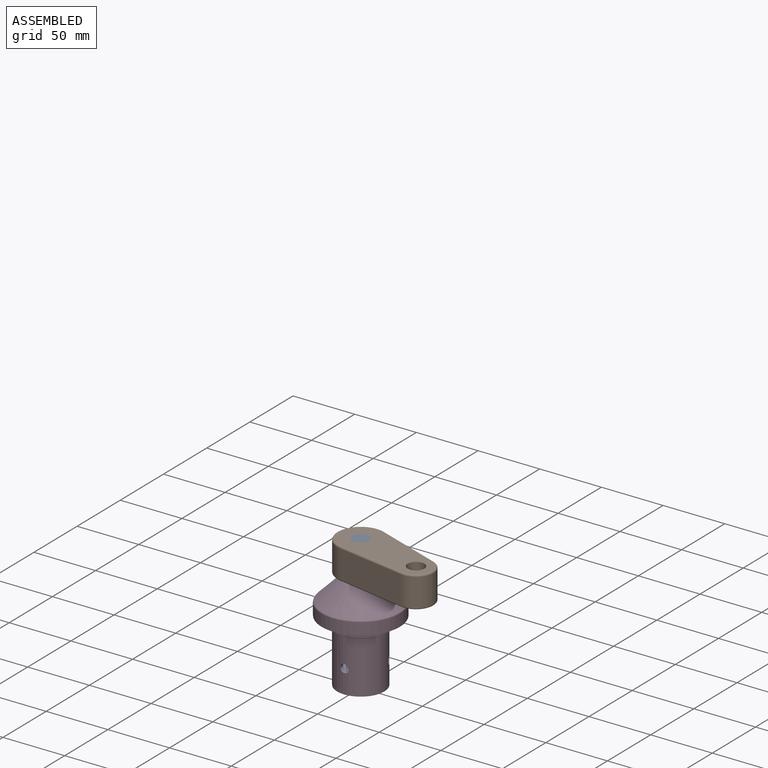
[diagram: assembled view]
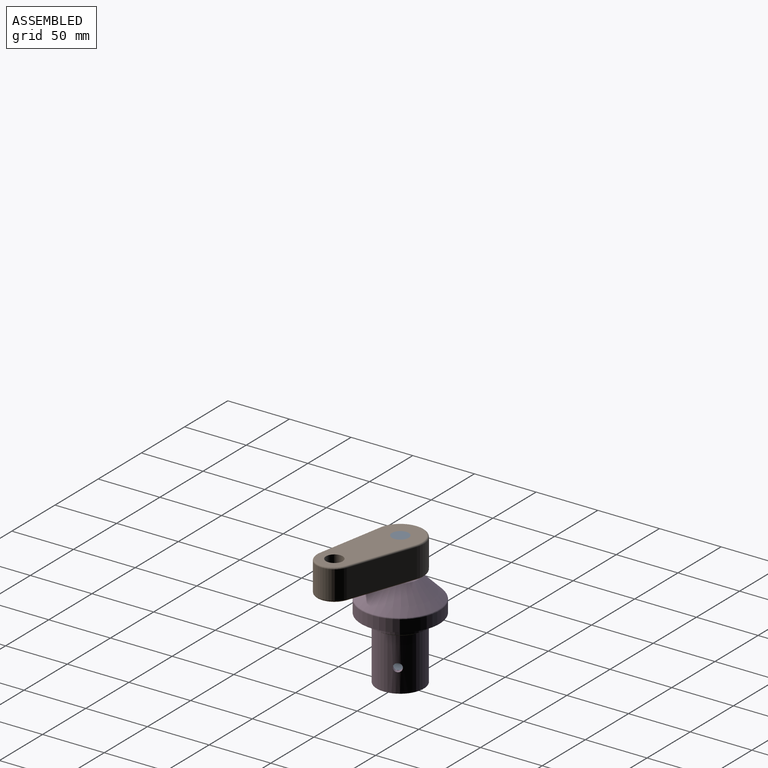
[diagram: assembled view, second angle]
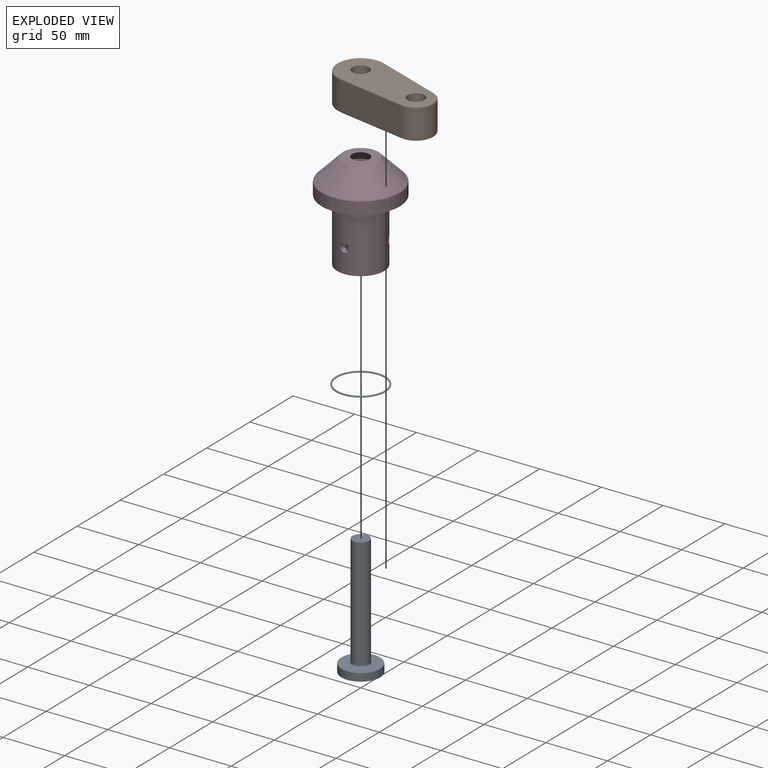
[diagram: exploded view]
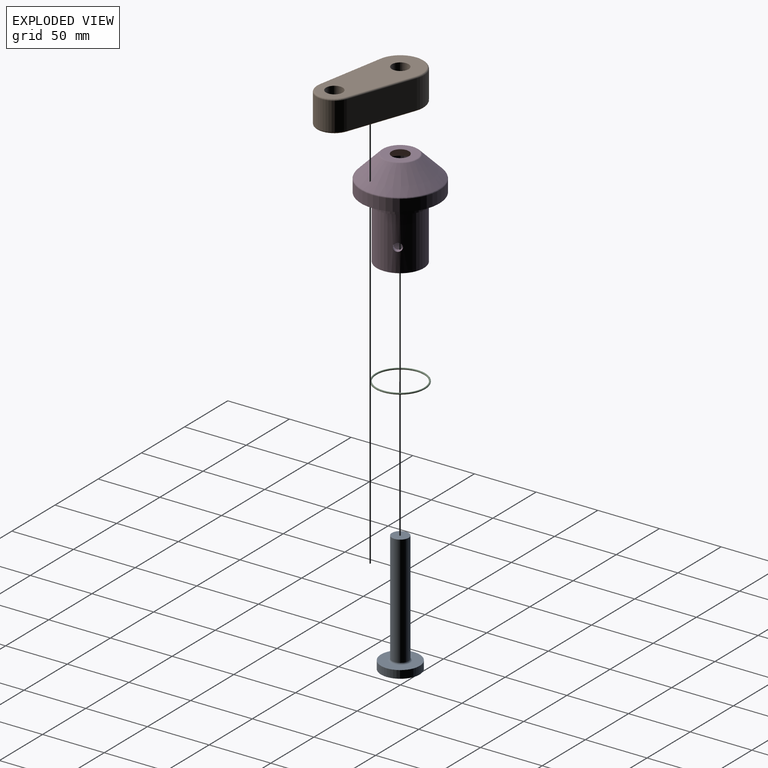
[diagram: exploded view, second angle]
ASSEMBLY  parts=4 mates=3
PART A: 6 faces, bbox 31.4x31.4x97.8 mm
  f0: plane 31.35x31.35mm, normal (0,0,-1), area 772.1mm2, adj f1
  f1: cylinder r=15.68mm len=31.35mm, axis (0,0,1), area 625.5mm2, adj f0,f2
  f2: plane 31.35x31.35mm, normal (0,0,1), area 568.1mm2, adj f1,f5
  f3: cylinder r=6.79mm len=90.17mm, axis (0,0,1), area 3845mm2, adj f4,f5
  f4: plane 13.57x13.57mm, normal (0,0,1), area 144.7mm2, adj f3
  f5: torus R=8.06mm, axis (0,0,1), area 90.9mm2, adj f2,f3
PART B: 16 faces, bbox 93.2x41.2x25.4 mm
  f0: plane 87.95x35.56mm, normal (0,0,-1), area 2239.6mm2, adj f5,f6,f8,f9,f10,f11
  f1: cylinder r=19.05mm len=38.1mm, axis (0,0,1), area 1440.8mm2, adj f2,f4,f11,f14
  f2: plane 56.75x22.86mm, normal (0.08,-1,0), area 1301.9mm2, adj f1,f3,f10,f12
  f3: cylinder r=14.29mm len=28.48mm, axis (0,0,1), area 971.6mm2, adj f2,f4,f8,f13
  f4: plane 56.75x22.86mm, normal (0.08,1,0), area 1301.9mm2, adj f1,f3,f9,f15
  f5: cylinder r=6.79mm len=25.4mm, axis (0,0,1), area 1083.1mm2, adj f0,f7
  f6: cylinder r=6.79mm len=25.4mm, axis (0,0,1), area 1083.1mm2, adj f0,f7
  f7: plane 87.95x35.56mm, normal (0,0,1), area 2239.6mm2, adj f5,f6,f12,f13,f14,f15
  f8: torus R=13.02mm, axis (0,0,-1), area 82mm2, adj f0,f3,f9,f10
  f9: cylinder r=1.27mm len=56.86mm, axis (-1,0.08,0), area 113.6mm2, adj f0,f4,f8,f11
  f10: cylinder r=1.27mm len=56.86mm, axis (1,0.08,0), area 113.6mm2, adj f0,f2,f8,f11
  f11: torus R=17.78mm, axis (0,0,-1), area 122.7mm2, adj f0,f1,f9,f10
  f12: cylinder r=1.27mm len=56.86mm, axis (1,0.08,0), area 113.6mm2, adj f2,f7,f13,f14
  f13: torus R=13.02mm, axis (0,0,1), area 82mm2, adj f3,f7,f12,f15
  f14: torus R=17.78mm, axis (0,0,1), area 122.7mm2, adj f1,f7,f12,f15
  f15: cylinder r=1.27mm len=56.86mm, axis (-1,0.08,0), area 113.6mm2, adj f4,f7,f13,f14
PART C: 1 faces, bbox 44x44x1.3 mm
  f0: torus R=19.69mm, axis (0,0,1), area 493.5mm2
PART D: 16 faces, bbox 68.7x68.7x78.7 mm
  f0: cylinder r=19.05mm len=44.45mm, axis (0,0,1), area 5212.7mm2, adj f3,f4,f11,f12,f13
  f1: cylinder r=15.88mm len=63.5mm, axis (0,0,1), area 6225.3mm2, adj f2,f10,f11,f12,f13
  f2: plane 31.75x31.75mm, normal (0,0,1), area 791.7mm2, adj f1
  f3: plane 38.1x38.1mm, normal (0,0,-1), area 1140.1mm2, adj f0
  f4: plane 44.45x44.45mm, normal (0,0,-1), area 411.7mm2, adj f0,f5
  f5: cylinder r=22.23mm len=44.45mm, axis (0,0,1), area 886.7mm2, adj f4,f6
  f6: plane 63.5x63.5mm, normal (0,0,-1), area 1615.1mm2, adj f5,f7
  f7: cylinder r=31.75mm len=63.5mm, axis (0,0,1), area 1921.9mm2, adj f6,f14
  f8: cone r=31.75mm half-angle=45deg, axis (0,0,-1), area 3460.5mm2, adj f14,f15
  f9: plane 26.89x26.89mm, normal (0,0,1), area 414.5mm2, adj f10,f15
  f10: cone r=6.99mm half-angle=45deg, axis (0,0,-1), area 902.9mm2, adj f1,f9
  f11: cylinder r=3.38mm len=6.76mm, axis (0,1,0), area 68.1mm2, adj f0,f1
  f12: cylinder r=3.38mm len=7.62mm, axis (-0.87,-0.5,0), area 68mm2, adj f0,f1
  f13: cylinder r=3.38mm len=7.62mm, axis (0.87,-0.5,0), area 68mm2, adj f0,f1
  f14: torus R=30.48mm, axis (0,0,-1), area 198.2mm2, adj f7,f8
  f15: torus R=13.44mm, axis (0,0,-1), area 87.2mm2, adj f8,f9
PLACE A t=(0,0,3.05)mm
PLACE B rot(axis=(0,0,-1),15deg) t=(0,0,3.05)mm
PLACE C t=(0,0,43.69)mm
PLACE D at identity fixed
MATE fastened C.f0 <-> D.f0  axis (0,0,1) through (0,0,43.69)mm
MATE cylindrical A.f1 <-> D.f0  axis (0,0,-1) through (0,0,9.4)mm
MATE fastened B.f1 <-> A.f1  axis (0,0,1) through (0,0,107.19)mm
